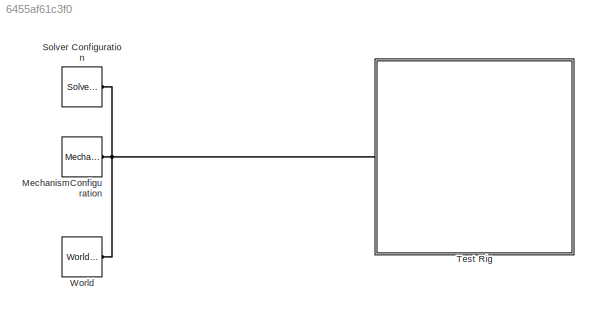
MODEL slx_6455af61c3f0
KIND model
BLOCK [Reference] MechanismConfiguration  REF=sm_lib/Utilities/Mechanism
Configuration
  BlockFunction = simmechanics.library.utilities.mechanism_configuration
  ClassName = MechanismConfiguration
  GravityUnits = m/s^2
  GravityVector = [0 -9.81 0]
  LinearizationDelta = 0.001
  Ports = [0, 0, 0, 0, 0, 0, 1]
  SourceBlock = sm_lib/Utilities/Mechanism\nConfiguration
  SourceType = Mechanism\nConfiguration
  UniformGravity = Constant
BLOCK [Reference] Solver Configuration  REF=nesl_utility/Solver
Configuration
  AbsTol = 1e-06
  Accelerate = off
  AutomaticFiltering = on
  DelaysMemoryBudget = 1024
  DoDC = off
  DoFixedCost = off
  EnableSwitchedLinearOptims = on
  FilteringTimeConstant = 0.001
  FrequencyDomain = off
  Harmonics = []
  LeftPortType = input
  LinearAlgebra = Sparse
  LocalSolverChoice = NE_BACKWARD_EULER_ADVANCER
  LocalSolverSampleTime = 0.001
  MaxModeIter = 2
  MaxNonlinIter = 3
  MinStep = 1e-09
  PhysicalDomain = network_engine_domain
  Ports = [0, 0, 0, 0, 0, 0, 1]
  Profile = off
  RelTol = 0.001
  ResidualTolerance = 1e-09
  RightPortType = generic
  SimulateNoise = off
  SourceBlock = nesl_utility/Solver\nConfiguration
  SourceType = Solver\nConfiguration
  SubClassName = solver
  ToWorkspace = off
  Tones = []
  UseCCode = off
  UseLocalSampling = off
  UseLocalSolver = off
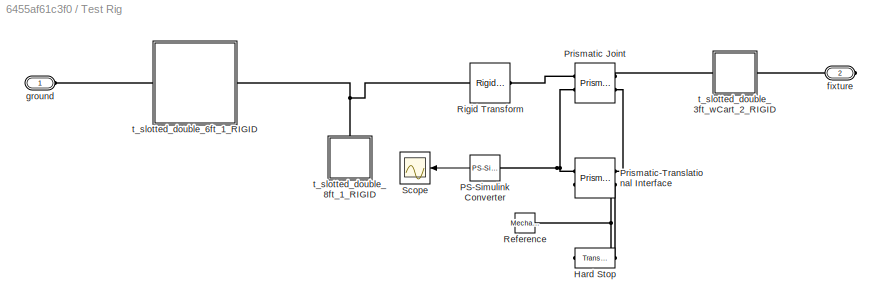
BLOCK [SubSystem] Test Rig
  Ports = [0, 0, 0, 0, 0, 1, 1]
  RequestExecContextInheritance = off
BLOCK [Reference] Test Rig/Hard Stop  REF=fl_lib/Mechanical/Translational
Elements/Translational Hard
Stop
  ClassName = hardstop
  ComponentPath = foundation.mechanical.translational.hardstop
  ComponentVariantNames = hardstop
  ComponentVariants = foundation.mechanical.translational.hardstop
  D_low = 150
  D_low_unit = N/(m/s)
  D_up = 150
  D_up_unit = N/(m/s)
  Ports = [0, 0, 0, 0, 0, 1, 1]
  SchemaVersion = 1
  SourceBlock = fl_lib/Mechanical/Translational\nElements/Translational Hard\nStop
  SourceFile = foundation.mechanical.translational.hardstop
  SourceType = Translational Hard\nStop
  f = 0
  f_priority = High
  f_specify = off
  f_unit = N
  lower_bnd = -2
  lower_bnd_unit = m
  stiff_low = 2e6
  stiff_low_unit = N/m
  stiff_up = 2e6
  stiff_up_unit = N/m
  upper_bnd = 3
  upper_bnd_unit = cm
  v = 0
  v_priority = High
  v_specify = off
  v_unit = m/s
  x = 1
  x_priority = High
  x_specify = on
  x_unit = cm
BLOCK [Reference] Test Rig/PS-Simulink Converter  REF=nesl_utility/PS-Simulink
Converter
  AffineConversion = off
  Frequencies = []
  LeftPortType = input
  PhysicalDomain = network_engine_domain
  Ports = [0, 1, 0, 0, 0, 1]
  PseudoPeriodic = off
  RightPortType = output
  SourceBlock = nesl_utility/PS-Simulink\nConverter
  SourceType = PS-Simulink\nConverter
  SubClassName = ps_output
  Unit = N
BLOCK [Reference] Test Rig/Prismatic Joint  REF=sm_lib/Joints/Prismatic
Joint
  BlockFunction = simmechanics.library.joints.prismatic_joint
  ClassName = PrismaticJoint
  CompositeWrenchDir = FollowerOnBase
  CompositeWrenchFrame = BaseFrame
  DampingCoefficient = 0
  DampingCoefficientUnits = N/(m/s)
  EquilibriumPosition = 0
  EquilibriumPositionUnits = m
  MotionActuationMode = ComputedMotion
  Ports = [0, 0, 0, 0, 0, 2, 2]
  PositionTargetPriority = High
  PositionTargetSpecify = on
  PositionTargetValue = 2
  PositionTargetValueUnits = m
  SenseAcceleration = off
  SenseConstraintForce = off
  SenseConstraintForceX = off
  SenseConstraintForceY = off
  SenseConstraintForceZ = off
  SenseConstraintTorque = off
  SenseConstraintTorqueX = off
  SenseConstraintTorqueY = off
  SenseConstraintTorqueZ = off
  SensePosition = off
  SenseTorqueForce = off
  SenseTotalForce = off
  SenseTotalForceX = off
  SenseTotalForceY = off
  SenseTotalForceZ = off
  SenseTotalTorque = off
  SenseTotalTorqueX = off
  SenseTotalTorqueY = off
  SenseTotalTorqueZ = off
  SenseVelocity = on
  SourceBlock = sm_lib/Joints/Prismatic\nJoint
  SourceType = Prismatic\nJoint
  SpringStiffness = 0
  SpringStiffnessUnits = N/m
  TorqueActuationMode = InputTorque
  VelocityTargetPriority = High
  VelocityTargetSpecify = off
  VelocityTargetValue = 0
  VelocityTargetValueUnits = m/s
BLOCK [Reference] Test Rig/Prismatic-Translational Interface  REF=sm_double_wishbone_suspension_lib/Testing
Platform/Prismatic-Translational
Interface
  Ports = [0, 0, 0, 0, 0, 2, 2]
  SourceBlock = sm_double_wishbone_suspension_lib/Testing\nPlatform/Prismatic-Translational\nInterface
  SourceType = SubSystem
BLOCK [Reference] Test Rig/Reference  REF=fl_lib/Mechanical/Translational
Elements/Mechanical
Translational
Reference
  ClassName = reference
  ComponentPath = foundation.mechanical.translational.reference
  ComponentVariantNames = reference
  ComponentVariants = foundation.mechanical.translational.reference
  Ports = [0, 0, 0, 0, 0, 1]
  SchemaVersion = 1
  SourceBlock = fl_lib/Mechanical/Translational\nElements/Mechanical\nTranslational\nReference
  SourceFile = foundation.mechanical.translational.reference
  SourceType = Mechanical\nTranslational\nReference
BLOCK [Reference] Test Rig/Rigid Transform  REF=sm_lib/Frames and
Transforms/Rigid
Transform
  BaseAlignAxisA = +Y
  BaseAlignAxisB = +Z
  BlockFunction = simmechanics.library.frames_transforms.rigid_transform
  ClassName = RigidTransform
  FollAlignAxisA = +X
  FollAlignAxisB = +Y
  Ports = [0, 0, 0, 0, 0, 1, 1]
  RotationAngle = -90
  RotationAngleUnits = deg
  RotationArbitraryAxis = [0 0 1]
  RotationMethod = StandardAxis
  RotationStandardAxis = +X
  SourceBlock = sm_lib/Frames and\nTransforms/Rigid\nTransform
  SourceType = Rigid\nTransform
  TranslationCartesianOffset = [0 0 0]
  TranslationLengthUnit = m
  TranslationMethod = None
  TranslationROffset = 0
  TranslationROffsetUnits = m
  TranslationStandardAxis = +Z
  TranslationStandardOffset = 0
  TranslationThetaOffset = 0
  TranslationThetaOffsetUnits = deg
  TranslationZOffset = 0
  TranslationZOffsetUnits = m
BLOCK [Scope] Test Rig/Scope
  Floating = off
  LimitDataPoints = off
  NumInputPorts = 1
  Ports = [1]
  ShowLegends = off
  ZoomMode = yonly
BLOCK [PMIOPort] Test Rig/fixture
  Port = 2
  Side = Right
BLOCK [PMIOPort] Test Rig/ground
  Port = 1
  Side = Left
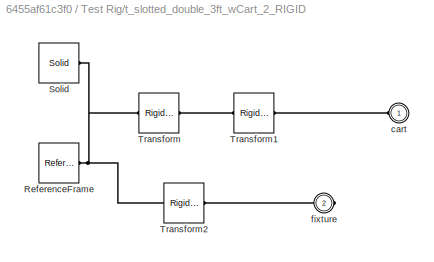
BLOCK [SubSystem] Test Rig/t_slotted_double_3ft_wCart_2_RIGID
  Ports = [0, 0, 0, 0, 0, 1, 1]
  RequestExecContextInheritance = off
BLOCK [Reference] Test Rig/t_slotted_double_3ft_wCart_2_RIGID/ReferenceFrame  REF=sm_lib/Frames and
Transforms/Reference
Frame
  BlockFunction = simmechanics.library.frames_transforms.reference_frame
  ClassName = ReferenceFrame
  Ports = [0, 0, 0, 0, 0, 0, 1]
  SourceBlock = sm_lib/Frames and\nTransforms/Reference\nFrame
  SourceType = Reference\nFrame
BLOCK [Reference] Test Rig/t_slotted_double_3ft_wCart_2_RIGID/Solid  REF=sm_lib/Body Elements/Solid
  BlockFunction = simmechanics.library.body_elements.solid
  BrickDimensionUnits = m
  BrickDimensions = [1 1 1]
  CenterOfMass = [0.49999999999999989 0 -1.5652047244094485]
  CenterOfMassUnits = in
  ClassName = Solid
  CylinderLength = 1
  CylinderLengthUnits = m
  CylinderRadius = 1
  CylinderRadiusUnits = m
  Density = 1000
  DensityBased = on
  DensityUnits = kg/(m^3)
  EllipsoidRadii = [1 1 1]
  EllipsoidRadiiUnits = m
  ExtGeomFileName = t_slotted_double_3ft_wCart_47065T213_sldprt.STL
  ExtGeomFileType = STL
  ExtGeomFileUnits = in
  ExtrusionCrossSection = [1 1; -1 1; -1 -1; 1 -1]
  ExtrusionCrossSectionUnits = m
  ExtrusionLength = 1
  ExtrusionLengthUnits = m
  GeometryShape = FromFile
  GraphicAmbientColor = [0.15 0.15 0.15 1.0]
  GraphicDiffuseColor = [0.752941 0.752941 0.752941]
  GraphicEmissiveColor = [0.0 0.0 0.0 1.0]
  GraphicOpacity = 1
  GraphicShininess = 75
  GraphicSpecularColor = [0.5 0.5 0.5 1.0]
  GraphicType = FromGeometry
  GraphicVisPropType = SimpleVisualProperties
  InertiaType = Custom
  MarkerShape = Sphere
  MarkerSize = 10
  MarkerSizeUnits = m
  Mass = 0.51014800000000005
  MassUnits = kg
  MomentsOfInertia = [64.830739661479299 64.972564945129875 0.25802281604563199]
  MomentsOfInertiaUnits = kg*in^2
  PolygonNumSides = 3
  PolygonOuterRadius = 1
  PolygonOuterRadiusUnits = m
  Ports = [0, 0, 0, 0, 0, 0, 1]
  ProductsOfInertia = [0 0 0]
  ProductsOfInertiaUnits = kg*in^2
  RectangleSize = [1 1]
  RectangleSizeUnits = m
  RevolutionAngle = 180
  RevolutionAngleUnits = deg
  RevolutionCrossSection = [1 1; 1 -1; 2 -1; 2 1]
  RevolutionCrossSectionUnits = m
  RevolutionExtent = Full
  SourceBlock = sm_lib/Body Elements/Solid
  SourceType = Solid
  SphereRadius = 1
  SphereRadiusUnits = m
BLOCK [Reference] Test Rig/t_slotted_double_3ft_wCart_2_RIGID/Transform  REF=sm_lib/Frames and
Transforms/Rigid
Transform
  BaseAlignAxisA = +Y
  BaseAlignAxisB = +Z
  BlockFunction = simmechanics.library.frames_transforms.rigid_transform
  ClassName = RigidTransform
  FollAlignAxisA = +X
  FollAlignAxisB = +Y
  Ports = [0, 0, 0, 0, 0, 1, 1]
  RotationAngle = 90
  RotationAngleUnits = deg
  RotationArbitraryAxis = [-0.70710678118654746 1.1041037750235395e-17 -0.70710678118654757]
  RotationMethod = StandardAxis
  RotationStandardAxis = +Z
  SourceBlock = sm_lib/Frames and\nTransforms/Rigid\nTransform
  SourceType = Rigid\nTransform
  TranslationCartesianOffset = [0 0 -19.75]
  TranslationLengthUnit = in
  TranslationMethod = Cartesian
  TranslationROffset = 0
  TranslationROffsetUnits = m
  TranslationStandardAxis = +Z
  TranslationStandardOffset = 0
  TranslationThetaOffset = 0
  TranslationThetaOffsetUnits = deg
  TranslationZOffset = 0
  TranslationZOffsetUnits = m
BLOCK [Reference] Test Rig/t_slotted_double_3ft_wCart_2_RIGID/Transform1  REF=sm_lib/Frames and
Transforms/Rigid
Transform
  BaseAlignAxisA = +Y
  BaseAlignAxisB = +Z
  BlockFunction = simmechanics.library.frames_transforms.rigid_transform
  ClassName = RigidTransform
  FollAlignAxisA = +X
  FollAlignAxisB = +Y
  Ports = [0, 0, 0, 0, 0, 1, 1]
  RotationAngle = -90
  RotationAngleUnits = deg
  RotationArbitraryAxis = [-0.70710678118654746 1.1041037750235395e-17 -0.70710678118654757]
  RotationMethod = StandardAxis
  RotationStandardAxis = +Y
  SourceBlock = sm_lib/Frames and\nTransforms/Rigid\nTransform
  SourceType = Rigid\nTransform
  TranslationCartesianOffset = [0 0 0]
  TranslationLengthUnit = ft
  TranslationMethod = Cartesian
  TranslationROffset = 0
  TranslationROffsetUnits = m
  TranslationStandardAxis = +Z
  TranslationStandardOffset = 0
  TranslationThetaOffset = 0
  TranslationThetaOffsetUnits = deg
  TranslationZOffset = 0
  TranslationZOffsetUnits = m
BLOCK [Reference] Test Rig/t_slotted_double_3ft_wCart_2_RIGID/Transform2  REF=sm_lib/Frames and
Transforms/Rigid
Transform
  BaseAlignAxisA = +Y
  BaseAlignAxisB = +Z
  BlockFunction = simmechanics.library.frames_transforms.rigid_transform
  ClassName = RigidTransform
  FollAlignAxisA = +X
  FollAlignAxisB = +Y
  Ports = [0, 0, 0, 0, 0, 1, 1]
  RotationAngle = 90
  RotationAngleUnits = deg
  RotationArbitraryAxis = [-0.70710678118654746 1.1041037750235395e-17 -0.70710678118654757]
  RotationMethod = None
  RotationStandardAxis = +Z
  SourceBlock = sm_lib/Frames and\nTransforms/Rigid\nTransform
  SourceType = Rigid\nTransform
  TranslationCartesianOffset = [0 0 0]
  TranslationLengthUnit = in
  TranslationMethod = Cartesian
  TranslationROffset = 0
  TranslationROffsetUnits = m
  TranslationStandardAxis = +Z
  TranslationStandardOffset = 0
  TranslationThetaOffset = 0
  TranslationThetaOffsetUnits = deg
  TranslationZOffset = 0
  TranslationZOffsetUnits = m
BLOCK [PMIOPort] Test Rig/t_slotted_double_3ft_wCart_2_RIGID/cart
  Port = 1
  Side = Left
BLOCK [PMIOPort] Test Rig/t_slotted_double_3ft_wCart_2_RIGID/fixture
  Port = 2
  Side = Right
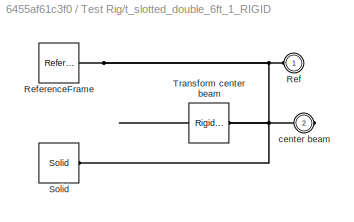
BLOCK [SubSystem] Test Rig/t_slotted_double_6ft_1_RIGID
  Ports = [0, 0, 0, 0, 0, 1, 1]
  RequestExecContextInheritance = off
BLOCK [PMIOPort] Test Rig/t_slotted_double_6ft_1_RIGID/Ref
  Port = 1
  Side = Left
BLOCK [Reference] Test Rig/t_slotted_double_6ft_1_RIGID/ReferenceFrame  REF=sm_lib/Frames and
Transforms/Reference
Frame
  BlockFunction = simmechanics.library.frames_transforms.reference_frame
  ClassName = ReferenceFrame
  Ports = [0, 0, 0, 0, 0, 0, 1]
  SourceBlock = sm_lib/Frames and\nTransforms/Reference\nFrame
  SourceType = Reference\nFrame
BLOCK [Reference] Test Rig/t_slotted_double_6ft_1_RIGID/Solid  REF=sm_lib/Body Elements/Solid
  BlockFunction = simmechanics.library.body_elements.solid
  BrickDimensionUnits = m
  BrickDimensions = [1 1 1]
  CenterOfMass = [0.49999999999999989 0 0]
  CenterOfMassUnits = in
  ClassName = Solid
  CylinderLength = 1
  CylinderLengthUnits = m
  CylinderRadius = 1
  CylinderRadiusUnits = m
  Density = 1000
  DensityBased = on
  DensityUnits = kg/(m^3)
  EllipsoidRadii = [1 1 1]
  EllipsoidRadiiUnits = m
  ExtGeomFileName = t_slotted_double_6ft_47065T213_sldprt.STL
  ExtGeomFileType = STL
  ExtGeomFileUnits = in
  ExtrusionCrossSection = [1 1; -1 1; -1 -1; 1 -1]
  ExtrusionCrossSectionUnits = m
  ExtrusionLength = 1
  ExtrusionLengthUnits = m
  GeometryShape = FromFile
  GraphicAmbientColor = [0.15 0.15 0.15 1.0]
  GraphicDiffuseColor = [0.752941 0.752941 0.752941]
  GraphicEmissiveColor = [0.0 0.0 0.0 1.0]
  GraphicOpacity = 1
  GraphicShininess = 75
  GraphicSpecularColor = [0.5 0.5 0.5 1.0]
  GraphicType = FromGeometry
  GraphicVisPropType = SimpleVisualProperties
  InertiaType = Custom
  MarkerShape = Sphere
  MarkerSize = 10
  MarkerSizeUnits = m
  Mass = 0.93733599999999995
  MassUnits = kg
  MomentsOfInertia = [405.02821005641994 405.29481058962102 0.46333002666005318]
  MomentsOfInertiaUnits = kg*in^2
  PolygonNumSides = 3
  PolygonOuterRadius = 1
  PolygonOuterRadiusUnits = m
  Ports = [0, 0, 0, 0, 0, 0, 1]
  ProductsOfInertia = [0 0 0]
  ProductsOfInertiaUnits = kg*in^2
  RectangleSize = [1 1]
  RectangleSizeUnits = m
  RevolutionAngle = 180
  RevolutionAngleUnits = deg
  RevolutionCrossSection = [1 1; 1 -1; 2 -1; 2 1]
  RevolutionCrossSectionUnits = m
  RevolutionExtent = Full
  SourceBlock = sm_lib/Body Elements/Solid
  SourceType = Solid
  SphereRadius = 1
  SphereRadiusUnits = m
BLOCK [Reference] Test Rig/t_slotted_double_6ft_1_RIGID/Transform center beam  REF=sm_lib/Frames and
Transforms/Rigid
Transform
  BaseAlignAxisA = +Y
  BaseAlignAxisB = +Z
  BlockFunction = simmechanics.library.frames_transforms.rigid_transform
  ClassName = RigidTransform
  FollAlignAxisA = +X
  FollAlignAxisB = +Y
  Ports = [0, 0, 0, 0, 0, 1, 1]
  RotationAngle = 0
  RotationAngleUnits = deg
  RotationArbitraryAxis = [0 0 1]
  RotationMethod = None
  RotationStandardAxis = +Z
  SourceBlock = sm_lib/Frames and\nTransforms/Rigid\nTransform
  SourceType = Rigid\nTransform
  TranslationCartesianOffset = [0 0.5 0]
  TranslationLengthUnit = in
  TranslationMethod = Cartesian
  TranslationROffset = 0
  TranslationROffsetUnits = m
  TranslationStandardAxis = +Z
  TranslationStandardOffset = 0
  TranslationThetaOffset = 0
  TranslationThetaOffsetUnits = deg
  TranslationZOffset = 0
  TranslationZOffsetUnits = m
BLOCK [PMIOPort] Test Rig/t_slotted_double_6ft_1_RIGID/center beam
  Port = 2
  Side = Right
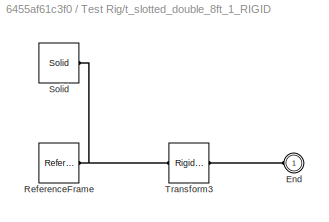
BLOCK [SubSystem] Test Rig/t_slotted_double_8ft_1_RIGID
  Ports = [0, 0, 0, 0, 0, 1]
  RequestExecContextInheritance = off
BLOCK [PMIOPort] Test Rig/t_slotted_double_8ft_1_RIGID/End
  Port = 1
  Side = Left
BLOCK [Reference] Test Rig/t_slotted_double_8ft_1_RIGID/ReferenceFrame  REF=sm_lib/Frames and
Transforms/Reference
Frame
  BlockFunction = simmechanics.library.frames_transforms.reference_frame
  ClassName = ReferenceFrame
  Ports = [0, 0, 0, 0, 0, 0, 1]
  SourceBlock = sm_lib/Frames and\nTransforms/Reference\nFrame
  SourceType = Reference\nFrame
BLOCK [Reference] Test Rig/t_slotted_double_8ft_1_RIGID/Solid  REF=sm_lib/Body Elements/Solid
  BlockFunction = simmechanics.library.body_elements.solid
  BrickDimensionUnits = m
  BrickDimensions = [1 1 1]
  CenterOfMass = [0.49999999999999989 0 0]
  CenterOfMassUnits = in
  ClassName = Solid
  CylinderLength = 1
  CylinderLengthUnits = m
  CylinderRadius = 1
  CylinderRadiusUnits = m
  Density = 1000
  DensityBased = on
  DensityUnits = kg/(m^3)
  EllipsoidRadii = [1 1 1]
  EllipsoidRadiiUnits = m
  ExtGeomFileName = t_slotted_double_8ft_47065T213_sldprt.STL
  ExtGeomFileType = STL
  ExtGeomFileUnits = in
  ExtrusionCrossSection = [1 1; -1 1; -1 -1; 1 -1]
  ExtrusionCrossSectionUnits = m
  ExtrusionLength = 1
  ExtrusionLengthUnits = m
  GeometryShape = FromFile
  GraphicAmbientColor = [0.15 0.15 0.15 1.0]
  GraphicDiffuseColor = [0.752941 0.752941 0.752941]
  GraphicEmissiveColor = [0.0 0.0 0.0 1.0]
  GraphicOpacity = 1
  GraphicShininess = 75
  GraphicSpecularColor = [0.5 0.5 0.5 1.0]
  GraphicType = FromGeometry
  GraphicVisPropType = SimpleVisualProperties
  InertiaType = Custom
  MarkerShape = Sphere
  MarkerSize = 10
  MarkerSizeUnits = m
  Mass = 1.2497799999999999
  MassUnits = kg
  MomentsOfInertia = [959.96341992683961 960.31837063674095 0.61777388554777091]
  MomentsOfInertiaUnits = kg*in^2
  PolygonNumSides = 3
  PolygonOuterRadius = 1
  PolygonOuterRadiusUnits = m
  Ports = [0, 0, 0, 0, 0, 0, 1]
  ProductsOfInertia = [0 0 0]
  ProductsOfInertiaUnits = kg*in^2
  RectangleSize = [1 1]
  RectangleSizeUnits = m
  RevolutionAngle = 180
  RevolutionAngleUnits = deg
  RevolutionCrossSection = [1 1; 1 -1; 2 -1; 2 1]
  RevolutionCrossSectionUnits = m
  RevolutionExtent = Full
  SourceBlock = sm_lib/Body Elements/Solid
  SourceType = Solid
  SphereRadius = 1
  SphereRadiusUnits = m
BLOCK [Reference] Test Rig/t_slotted_double_8ft_1_RIGID/Transform3  REF=sm_lib/Frames and
Transforms/Rigid
Transform
  BaseAlignAxisA = +Y
  BaseAlignAxisB = +Z
  BlockFunction = simmechanics.library.frames_transforms.rigid_transform
  ClassName = RigidTransform
  FollAlignAxisA = +X
  FollAlignAxisB = +Y
  Ports = [0, 0, 0, 0, 0, 1, 1]
  RotationAngle = -90
  RotationAngleUnits = deg
  RotationArbitraryAxis = [0.57735026918962584 0.57735026918962584 0.57735026918962584]
  RotationMethod = StandardAxis
  RotationStandardAxis = +X
  SourceBlock = sm_lib/Frames and\nTransforms/Rigid\nTransform
  SourceType = Rigid\nTransform
  TranslationCartesianOffset = [0 0 4]
  TranslationLengthUnit = ft
  TranslationMethod = Cartesian
  TranslationROffset = 0
  TranslationROffsetUnits = m
  TranslationStandardAxis = +Z
  TranslationStandardOffset = 0
  TranslationThetaOffset = 0
  TranslationThetaOffsetUnits = deg
  TranslationZOffset = 0
  TranslationZOffsetUnits = m
BLOCK [Reference] World  REF=sm_lib/Frames and
Transforms/World Frame
  BlockFunction = simmechanics.library.frames_transforms.world_frame
  ClassName = WorldFrame
  Ports = [0, 0, 0, 0, 0, 0, 1]
  SourceBlock = sm_lib/Frames and\nTransforms/World Frame
  SourceType = World Frame
LINE Test Rig/PS-Simulink Converter:1 -> Test Rig/Scope:1
PNET net1: MechanismConfiguration:RConn1 -- Solver Configuration:RConn1 -- Test Rig:LConn1 -- World:RConn1
PLINE Test Rig/Hard Stop:LConn1 -- Test Rig/Prismatic-Translational Interface:LConn2
PNET net2: Test Rig/Hard Stop:RConn1 -- Test Rig/Prismatic-Translational Interface:RConn2 -- Test Rig/Reference:LConn1
PNET net3: Test Rig/PS-Simulink Converter:LConn1 -- Test Rig/Prismatic Joint:LConn2 -- Test Rig/Prismatic-Translational Interface:RConn1
PLINE Test Rig/Prismatic Joint:LConn1 -- Test Rig/Rigid Transform:RConn1
PLINE Test Rig/Prismatic Joint:RConn1 -- Test Rig/t_slotted_double_3ft_wCart_2_RIGID:LConn1
PLINE Test Rig/Prismatic Joint:RConn2 -- Test Rig/Prismatic-Translational Interface:LConn1
PNET net4: Test Rig/Rigid Transform:LConn1 -- Test Rig/t_slotted_double_6ft_1_RIGID:RConn1 -- Test Rig/t_slotted_double_8ft_1_RIGID:LConn1
PLINE Test Rig/fixture:RConn1 -- Test Rig/t_slotted_double_3ft_wCart_2_RIGID:RConn1
PLINE Test Rig/ground:RConn1 -- Test Rig/t_slotted_double_6ft_1_RIGID:LConn1
PNET net5: Test Rig/t_slotted_double_3ft_wCart_2_RIGID/ReferenceFrame:RConn1 -- Test Rig/t_slotted_double_3ft_wCart_2_RIGID/Solid:RConn1 -- Test Rig/t_slotted_double_3ft_wCart_2_RIGID/Transform2:LConn1 -- Test Rig/t_slotted_double_3ft_wCart_2_RIGID/Transform:LConn1
PLINE Test Rig/t_slotted_double_3ft_wCart_2_RIGID/Transform1:LConn1 -- Test Rig/t_slotted_double_3ft_wCart_2_RIGID/Transform:RConn1
PLINE Test Rig/t_slotted_double_3ft_wCart_2_RIGID/Transform1:RConn1 -- Test Rig/t_slotted_double_3ft_wCart_2_RIGID/cart:RConn1
PLINE Test Rig/t_slotted_double_3ft_wCart_2_RIGID/Transform2:RConn1 -- Test Rig/t_slotted_double_3ft_wCart_2_RIGID/fixture:RConn1
PNET net6: Test Rig/t_slotted_double_6ft_1_RIGID/Ref:RConn1 -- Test Rig/t_slotted_double_6ft_1_RIGID/ReferenceFrame:RConn1 -- Test Rig/t_slotted_double_6ft_1_RIGID/Solid:RConn1 -- Test Rig/t_slotted_double_6ft_1_RIGID/Transform center beam:LConn1
PLINE Test Rig/t_slotted_double_6ft_1_RIGID/Transform center beam:RConn1 -- Test Rig/t_slotted_double_6ft_1_RIGID/center beam:RConn1
PLINE Test Rig/t_slotted_double_8ft_1_RIGID/End:RConn1 -- Test Rig/t_slotted_double_8ft_1_RIGID/Transform3:RConn1
PNET net7: Test Rig/t_slotted_double_8ft_1_RIGID/ReferenceFrame:RConn1 -- Test Rig/t_slotted_double_8ft_1_RIGID/Solid:RConn1 -- Test Rig/t_slotted_double_8ft_1_RIGID/Transform3:LConn1
note: PNET lines group multi-terminal physical nets as a canonical sorted terminal list (undirected conserving connections); 2-terminal nets keep the pairwise PLINE form
